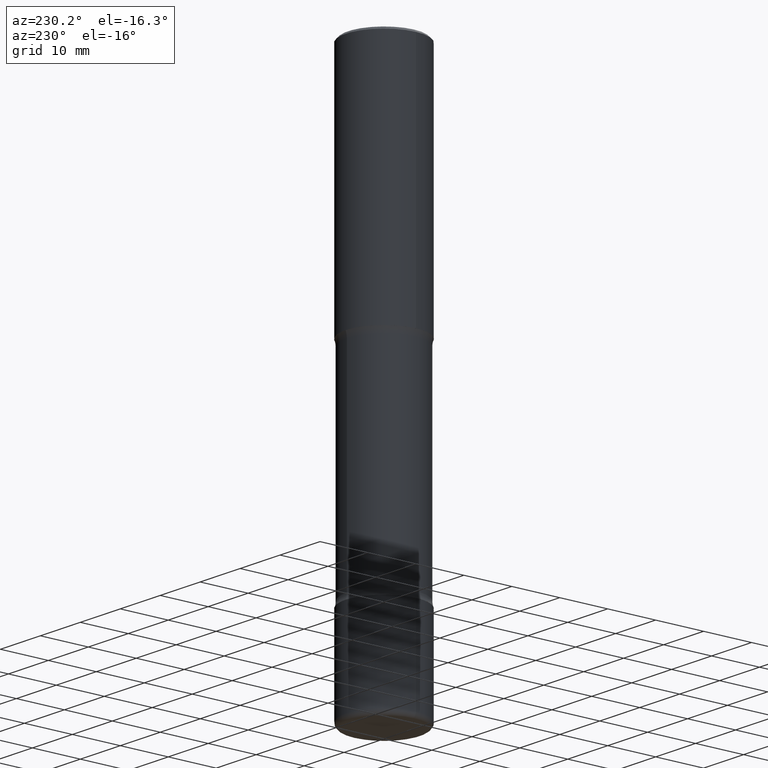
[diagram: clean part render]
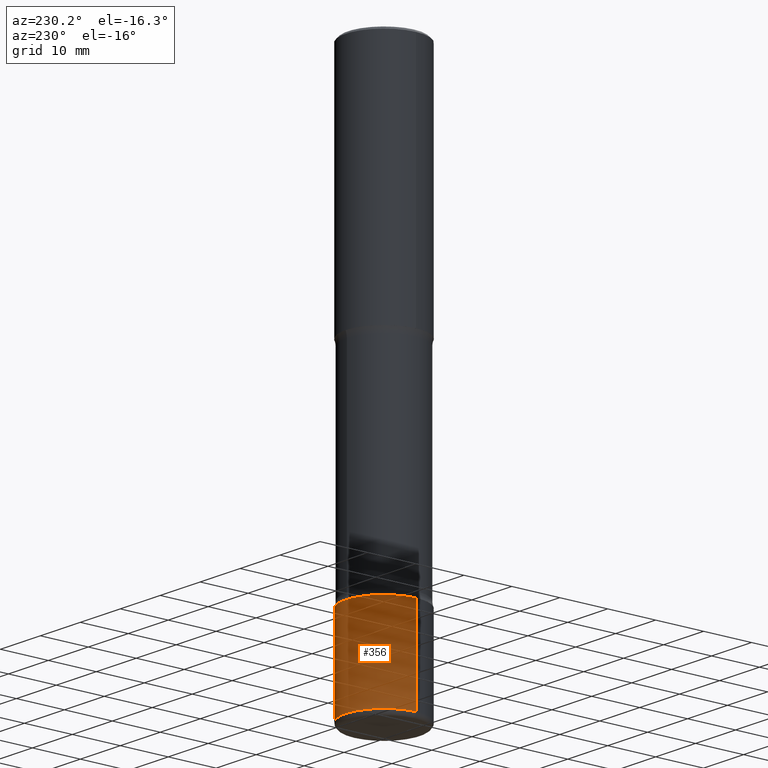
[diagram: same view with one face highlighted and labeled with its STEP entity id]
A machine part, auxiliary view. The second image highlights one B-rep face of the part: STEP entity #356.
In plain terms, the highlighted cylindrical surface (partial cylindrical patch) has radius 7.9997 mm, axis along (-0, 0, 1).
Its self-contained STEP definition (entity closure, byte-faithful):
#19 = ORIENTED_EDGE ( 'NONE', *, *, #295, .T. ) ;
#31 = DIRECTION ( 'NONE',  ( 1.000000000000000000, -6.982962677686264344E-15, 0.000000000000000000 ) ) ;
#32 = CARTESIAN_POINT ( 'NONE',  ( -0.3149500000000000632, -1.343261219871936869E-14, -4.488199999999999967 ) ) ;
#36 = DIRECTION ( 'NONE',  ( -2.445468806185136597E-29, 3.491481338843145583E-15, 1.000000000000000000 ) ) ;
#41 = LINE ( 'NONE', #393, #361 ) ;
#63 = VERTEX_POINT ( 'NONE', #335 ) ;
#86 = CIRCLE ( 'NONE', #159, 0.3149500000000001743 ) ;
#92 = VERTEX_POINT ( 'NONE', #214 ) ;
#116 = DIRECTION ( 'NONE',  ( 1.000000000000000000, -6.982962677686272233E-15, 0.000000000000000000 ) ) ;
#144 = VERTEX_POINT ( 'NONE', #32 ) ;
#148 = VECTOR ( 'NONE', #553, 39.37007874015748143 ) ;
#159 = AXIS2_PLACEMENT_3D ( 'NONE', #381, #36, #116 ) ;
#162 = EDGE_CURVE ( 'NONE', #144, #92, #41, .T. ) ;
#169 = DIRECTION ( 'NONE',  ( -2.445468806185136877E-29, 3.491481338843145188E-15, 1.000000000000000000 ) ) ;
#175 = DIRECTION ( 'NONE',  ( 1.000000000000000000, -6.982962677686265922E-15, 4.876176775795935232E-29 ) ) ;
#183 = DIRECTION ( 'NONE',  ( -2.445468806185136597E-29, 3.491481338843145583E-15, 1.000000000000000000 ) ) ;
#195 = CARTESIAN_POINT ( 'NONE',  ( 9.146542428893650504E-29, -1.305883850354113594E-14, -3.740200000000000635 ) ) ;
#198 = ORIENTED_EDGE ( 'NONE', *, *, #286, .F. ) ;
#205 = EDGE_LOOP ( 'NONE', ( #19, #303, #349, #198 ) ) ;
#214 = CARTESIAN_POINT ( 'NONE',  ( -0.3149500000000002298, -1.212679817799203354E-14, -3.740200000000000635 ) ) ;
#238 = EDGE_CURVE ( 'NONE', #63, #92, #460, .T. ) ;
#252 = VERTEX_POINT ( 'NONE', #389 ) ;
#271 = CARTESIAN_POINT ( 'NONE',  ( 0.000000000000000000, 0.000000000000000000, 0.000000000000000000 ) ) ;
#282 = AXIS2_PLACEMENT_3D ( 'NONE', #271, #183, #175 ) ;
#286 = EDGE_CURVE ( 'NONE', #252, #63, #501, .T. ) ;
#295 = EDGE_CURVE ( 'NONE', #252, #144, #86, .T. ) ;
#303 = ORIENTED_EDGE ( 'NONE', *, *, #162, .T. ) ;
#330 = AXIS2_PLACEMENT_3D ( 'NONE', #195, #506, #31 ) ;
#335 = CARTESIAN_POINT ( 'NONE',  ( 0.3149500000000002298, -1.525812259887842581E-14, -3.740200000000000635 ) ) ;
#349 = ORIENTED_EDGE ( 'NONE', *, *, #238, .F. ) ;
#356 = ADVANCED_FACE ( 'NONE', ( #524 ), #364, .T. ) ;
#361 = VECTOR ( 'NONE', #169, 39.37007874015748143 ) ;
#364 = CYLINDRICAL_SURFACE ( 'NONE', #282, 0.3149500000000001743 ) ;
#381 = CARTESIAN_POINT ( 'NONE',  ( 1.097575309592012950E-28, -1.567046654499580468E-14, -4.488199999999999967 ) ) ;
#389 = CARTESIAN_POINT ( 'NONE',  ( 0.3149500000000000632, -1.786975064033309928E-14, -4.488199999999999967 ) ) ;
#393 = CARTESIAN_POINT ( 'NONE',  ( -0.3149500000000001743, 2.237854346276436774E-15, -1.549218606675783237E-29 ) ) ;
#430 = CARTESIAN_POINT ( 'NONE',  ( 0.3149500000000001743, -2.199284095337290660E-15, 1.535751875536930690E-29 ) ) ;
#460 = CIRCLE ( 'NONE', #330, 0.3149500000000002298 ) ;
#501 = LINE ( 'NONE', #430, #148 ) ;
#506 = DIRECTION ( 'NONE',  ( -2.445468806185136597E-29, 3.491481338843145583E-15, 1.000000000000000000 ) ) ;
#524 = FACE_OUTER_BOUND ( 'NONE', #205, .T. ) ;
#553 = DIRECTION ( 'NONE',  ( -2.445468806185136877E-29, 3.491481338843145188E-15, 1.000000000000000000 ) ) ;